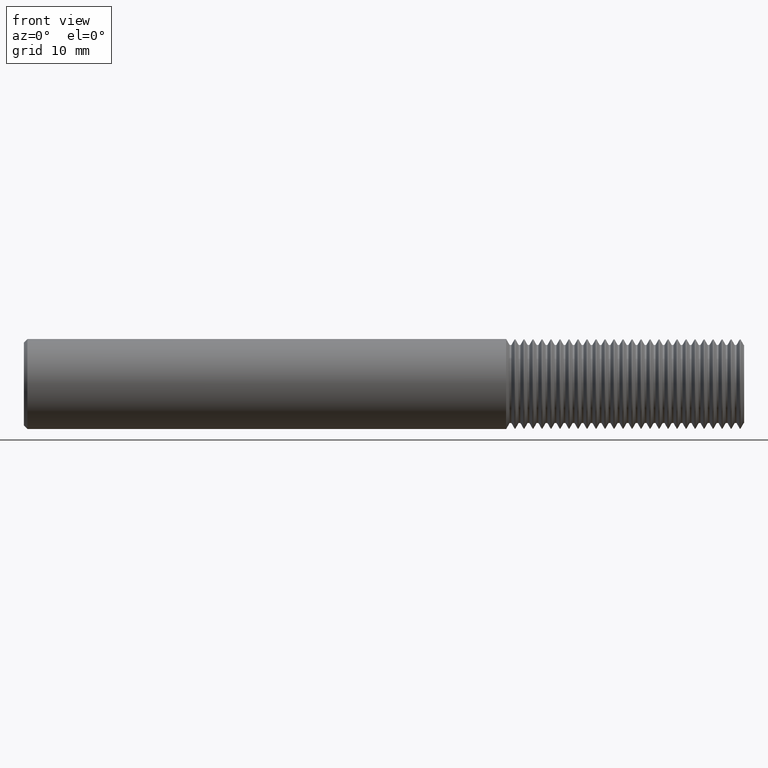
[diagram: clean part render]
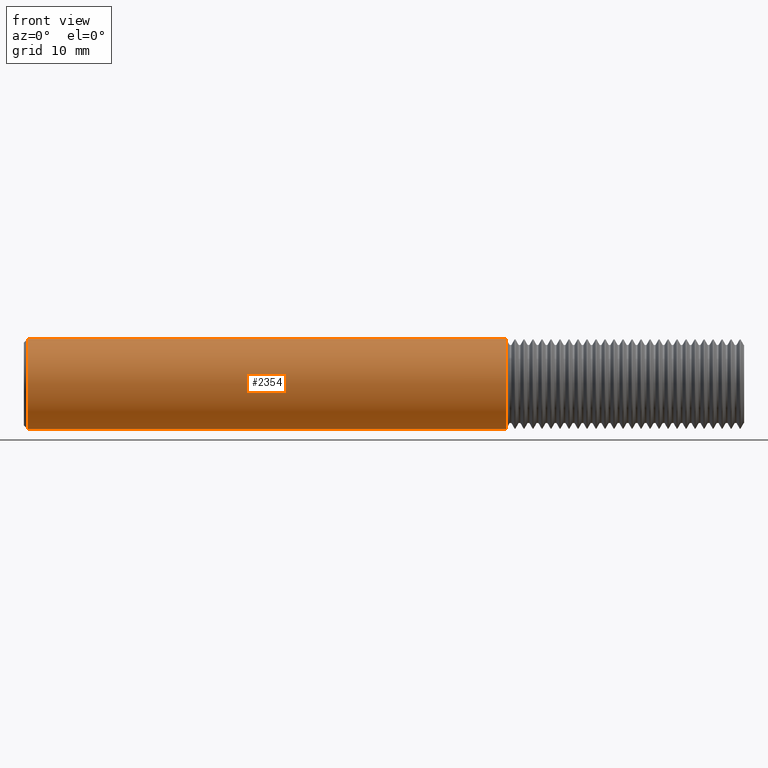
[diagram: same view with one face highlighted and labeled with its STEP entity id]
A machine part, front view. The second image highlights one B-rep face of the part: STEP entity #2354.
In plain terms, the highlighted cylindrical surface (partial cylindrical patch) has radius 6.3462 mm, axis along (1, -0, -0).
Its self-contained STEP definition (entity closure, byte-faithful):
#200 = DIRECTION ( 'NONE',  ( 1.000000000000000000, -0.000000000000000000, -0.000000000000000000 ) ) ;
#221 = CARTESIAN_POINT ( 'NONE',  ( 2.678407069094895565, 0.000000000000000000, 0.000000000000000000 ) ) ;
#531 = LINE ( 'NONE', #3175, #4911 ) ;
#542 = EDGE_CURVE ( 'NONE', #2357, #2588, #1169, .T. ) ;
#783 = CARTESIAN_POINT ( 'NONE',  ( 0.01999999999999978531, 0.000000000000000000, -0.2498499999999999888 ) ) ;
#806 = ORIENTED_EDGE ( 'NONE', *, *, #3895, .T. ) ;
#903 = AXIS2_PLACEMENT_3D ( 'NONE', #3790, #4738, #3007 ) ;
#954 = DIRECTION ( 'NONE',  ( 1.000000000000000000, -0.000000000000000000, -0.000000000000000000 ) ) ;
#984 = ORIENTED_EDGE ( 'NONE', *, *, #4671, .T. ) ;
#1057 = VERTEX_POINT ( 'NONE', #1873 ) ;
#1122 = EDGE_CURVE ( 'NONE', #2357, #1057, #531, .T. ) ;
#1169 = CIRCLE ( 'NONE', #903, 0.2498499999999999888 ) ;
#1204 = CIRCLE ( 'NONE', #5472, 0.2498499999999999888 ) ;
#1493 = AXIS2_PLACEMENT_3D ( 'NONE', #2049, #200, #3607 ) ;
#1549 = LINE ( 'NONE', #4140, #3092 ) ;
#1591 = DIRECTION ( 'NONE',  ( -1.000000000000000000, -0.000000000000000000, -0.000000000000000000 ) ) ;
#1633 = EDGE_LOOP ( 'NONE', ( #3295, #4947, #806, #984 ) ) ;
#1859 = VERTEX_POINT ( 'NONE', #5225 ) ;
#1873 = CARTESIAN_POINT ( 'NONE',  ( 2.678407069094895565, 0.000000000000000000, 0.2498499999999999333 ) ) ;
#2049 = CARTESIAN_POINT ( 'NONE',  ( 4.000000000000000000, 0.000000000000000000, 0.000000000000000000 ) ) ;
#2354 = ADVANCED_FACE ( 'NONE', ( #3284 ), #5411, .T. ) ;
#2357 = VERTEX_POINT ( 'NONE', #4544 ) ;
#2588 = VERTEX_POINT ( 'NONE', #783 ) ;
#3007 = DIRECTION ( 'NONE',  ( 0.000000000000000000, 0.000000000000000000, 1.000000000000000000 ) ) ;
#3092 = VECTOR ( 'NONE', #5425, 39.37007874015748143 ) ;
#3175 = CARTESIAN_POINT ( 'NONE',  ( 4.000000000000000000, 3.059780027669661931E-17, 0.2498499999999999888 ) ) ;
#3284 = FACE_OUTER_BOUND ( 'NONE', #1633, .T. ) ;
#3295 = ORIENTED_EDGE ( 'NONE', *, *, #1122, .F. ) ;
#3607 = DIRECTION ( 'NONE',  ( 0.000000000000000000, 0.000000000000000000, -1.000000000000000000 ) ) ;
#3790 = CARTESIAN_POINT ( 'NONE',  ( 0.01999999999999978531, 0.000000000000000000, 0.000000000000000000 ) ) ;
#3895 = EDGE_CURVE ( 'NONE', #2588, #1859, #1549, .T. ) ;
#4140 = CARTESIAN_POINT ( 'NONE',  ( 4.000000000000000000, 0.000000000000000000, -0.2498499999999999888 ) ) ;
#4544 = CARTESIAN_POINT ( 'NONE',  ( 0.01999999999999978531, 3.059780027669661931E-17, 0.2498499999999999888 ) ) ;
#4671 = EDGE_CURVE ( 'NONE', #1859, #1057, #1204, .T. ) ;
#4738 = DIRECTION ( 'NONE',  ( 1.000000000000000000, -0.000000000000000000, -0.000000000000000000 ) ) ;
#4911 = VECTOR ( 'NONE', #954, 39.37007874015748143 ) ;
#4929 = DIRECTION ( 'NONE',  ( 0.000000000000000000, 0.000000000000000000, 1.000000000000000000 ) ) ;
#4947 = ORIENTED_EDGE ( 'NONE', *, *, #542, .T. ) ;
#5225 = CARTESIAN_POINT ( 'NONE',  ( 2.678407069094895565, 3.059780027669661314E-17, -0.2498499999999999333 ) ) ;
#5411 = CYLINDRICAL_SURFACE ( 'NONE', #1493, 0.2498499999999999888 ) ;
#5425 = DIRECTION ( 'NONE',  ( 1.000000000000000000, -0.000000000000000000, -0.000000000000000000 ) ) ;
#5472 = AXIS2_PLACEMENT_3D ( 'NONE', #221, #1591, #4929 ) ;